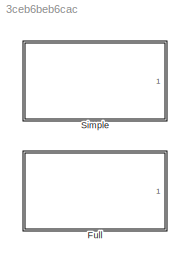
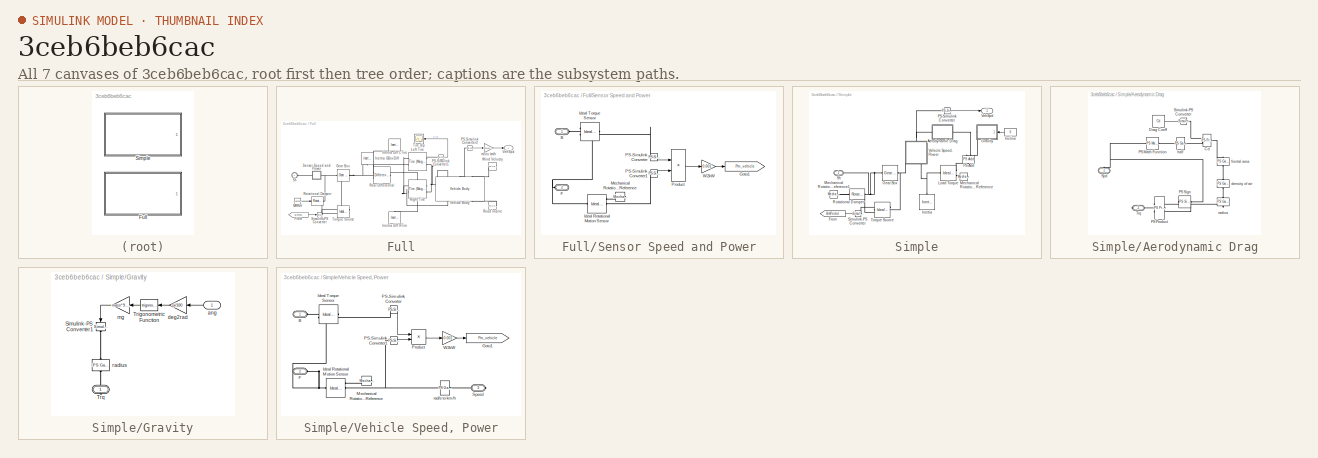
[diagram: thumbnail index - all 7 canvases of the model, root first then tree order]
MODEL slx_3ceb6beb6cac
KIND library
CONFIG AbsTol = auto
CONFIG EnableMultiTasking = on
CONFIG FixedStep = auto
CONFIG MaxStep = auto
CONFIG MinStep = auto
CONFIG RelTol = 1e-3
CONFIG SampleTimeConstraint = Unconstrained
CONFIG Solver = ode45
CONFIG SolverName = ode45
CONFIG StartTime = 0.0
CONFIG StopTime = 10.0
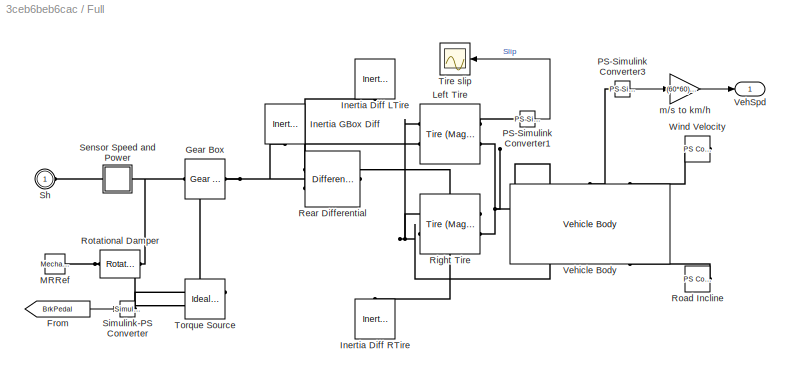
BLOCK [SubSystem] Full
  Ports = [0, 1, 0, 0, 0, 1]
  RequestExecContextInheritance = off
BLOCK [From] Full/From
  GotoTag = BrkPedal
BLOCK [Reference] Full/Gear Box  REF=fl_lib/Mechanical/Mechanisms/Gear Box
  Ports = [0, 0, 0, 0, 0, 1, 1]
  SourceBlock = fl_lib/Mechanical/Mechanisms/Gear Box
  SourceProductBaseCode = SS
  SourceType = Gear Box
BLOCK [Reference] Full/Inertia Diff LTire  REF=fl_lib/Mechanical/Rotational Elements/Inertia
  NameLocation = left
  Ports = [0, 0, 0, 0, 0, 1]
  SourceBlock = fl_lib/Mechanical/Rotational Elements/Inertia
  SourceProductBaseCode = SS
  SourceType = Inertia
BLOCK [Reference] Full/Inertia Diff RTire  REF=fl_lib/Mechanical/Rotational Elements/Inertia
  NameLocation = left
  Ports = [0, 0, 0, 0, 0, 1]
  SourceBlock = fl_lib/Mechanical/Rotational Elements/Inertia
  SourceProductBaseCode = SS
  SourceType = Inertia
BLOCK [Reference] Full/Inertia GBox Diff  REF=fl_lib/Mechanical/Rotational Elements/Inertia
  NameLocation = left
  Ports = [0, 0, 0, 0, 0, 1]
  SourceBlock = fl_lib/Mechanical/Rotational Elements/Inertia
  SourceProductBaseCode = SS
  SourceType = Inertia
BLOCK [Reference] Full/Left Tire  REF=sdl_lib/Tires & Vehicles/Tire (Magic Formula)
  Ports = [0, 0, 0, 0, 0, 2, 2]
  SourceBlock = sdl_lib/Tires & Vehicles/Tire (Magic Formula)
  SourceProductBaseCode = LD
  SourceType = Tire (Magic Formula)
BLOCK [Reference] Full/MRRef  REF=fl_lib/Mechanical/Rotational Elements/Mechanical
Rotational Reference
  NameLocation = top
  Ports = [0, 0, 0, 0, 0, 1]
  SourceBlock = fl_lib/Mechanical/Rotational Elements/Mechanical\nRotational Reference
  SourceProductBaseCode = SS
  SourceType = Mechanical\nRotational Reference
BLOCK [Reference] Full/PS-Simulink Converter1  REF=nesl_utility/PS-Simulink
Converter
  Ports = [0, 1, 0, 0, 0, 1]
  SourceBlock = nesl_utility/PS-Simulink\nConverter
  SourceProductBaseCode = SS
  SourceType = PS-Simulink\nConverter
BLOCK [Reference] Full/PS-Simulink Converter3  REF=nesl_utility/PS-Simulink
Converter
  Ports = [0, 1, 0, 0, 0, 1]
  SourceBlock = nesl_utility/PS-Simulink\nConverter
  SourceProductBaseCode = SS
  SourceType = PS-Simulink\nConverter
BLOCK [Reference] Full/Rear Differential  REF=sdl_lib/Gears/Differential
  Ports = [0, 0, 0, 0, 0, 1, 2]
  SourceBlock = sdl_lib/Gears/Differential
  SourceProductBaseCode = LD
  SourceType = Differential
BLOCK [Reference] Full/Right Tire  REF=sdl_lib/Tires & Vehicles/Tire (Magic Formula)
  Ports = [0, 0, 0, 0, 0, 2, 2]
  SourceBlock = sdl_lib/Tires & Vehicles/Tire (Magic Formula)
  SourceProductBaseCode = LD
  SourceType = Tire (Magic Formula)
BLOCK [Reference] Full/Road Incline  REF=fl_lib/Physical Signals/Sources/PS Constant
  Ports = [0, 0, 0, 0, 0, 0, 1]
  SourceBlock = fl_lib/Physical Signals/Sources/PS Constant
  SourceProductBaseCode = SS
  SourceType = PS Constant
BLOCK [Reference] Full/Rotational Damper  REF=fl_lib/Mechanical/Rotational Elements/Rotational Damper
  Ports = [0, 0, 0, 0, 0, 1, 1]
  SourceBlock = fl_lib/Mechanical/Rotational Elements/Rotational Damper
  SourceProductBaseCode = SS
  SourceType = Rotational Damper
BLOCK [SubSystem] Full/Sensor Speed and Power
  Ports = [0, 0, 0, 0, 0, 1, 1]
  RequestExecContextInheritance = off
BLOCK [PMIOPort] Full/Sensor Speed and Power/B
  NameLocation = top
  Side = Left
BLOCK [PMIOPort] Full/Sensor Speed and Power/F
  NameLocation = top
  Port = 2
  Side = Right
BLOCK [Goto] Full/Sensor Speed and Power/Goto1
  GotoTag = Pm_vehicle
  TagVisibility = global
BLOCK [Reference] Full/Sensor Speed and Power/Ideal Rotational Motion Sensor  REF=fl_lib/Mechanical/Mechanical Sensors/Ideal Rotational
Motion Sensor
  Ports = [0, 0, 0, 0, 0, 1, 3]
  SourceBlock = fl_lib/Mechanical/Mechanical Sensors/Ideal Rotational\nMotion Sensor
  SourceProductBaseCode = SS
  SourceType = Ideal Rotational\nMotion Sensor
BLOCK [Reference] Full/Sensor Speed and Power/Ideal Torque Sensor  REF=fl_lib/Mechanical/Mechanical Sensors/Ideal Torque Sensor
  Ports = [0, 0, 0, 0, 0, 1, 2]
  SourceBlock = fl_lib/Mechanical/Mechanical Sensors/Ideal Torque Sensor
  SourceProductBaseCode = SS
  SourceType = Ideal Torque Sensor
BLOCK [Reference] Full/Sensor Speed and Power/Mechanical Rotational Reference  REF=fl_lib/Mechanical/Rotational Elements/Mechanical
Rotational Reference
  NameLocation = top
  Ports = [0, 0, 0, 0, 0, 1]
  SourceBlock = fl_lib/Mechanical/Rotational Elements/Mechanical\nRotational Reference
  SourceProductBaseCode = SS
  SourceType = Mechanical\nRotational Reference
BLOCK [Reference] Full/Sensor Speed and Power/PS-Simulink Converter  REF=nesl_utility/PS-Simulink
Converter
  Ports = [0, 1, 0, 0, 0, 1]
  SourceBlock = nesl_utility/PS-Simulink\nConverter
  SourceProductBaseCode = SS
  SourceType = PS-Simulink\nConverter
BLOCK [Reference] Full/Sensor Speed and Power/PS-Simulink Converter1  REF=nesl_utility/PS-Simulink
Converter
  Ports = [0, 1, 0, 0, 0, 1]
  SourceBlock = nesl_utility/PS-Simulink\nConverter
  SourceProductBaseCode = SS
  SourceType = PS-Simulink\nConverter
BLOCK [Product] Full/Sensor Speed and Power/Product
  Ports = [2, 1]
  RndMeth = Zero
BLOCK [Gain] Full/Sensor Speed and Power/W2kW
  Gain = 0.001
BLOCK [PMIOPort] Full/Sh
  Side = Left
BLOCK [Reference] Full/Simulink-PS Converter  REF=nesl_utility/Simulink-PS
Converter
  Ports = [1, 0, 0, 0, 0, 0, 1]
  SourceBlock = nesl_utility/Simulink-PS\nConverter
  SourceProductBaseCode = SS
  SourceType = Simulink-PS\nConverter
BLOCK [Scope] Full/Tire slip
  Floating = off
  NumInputPorts = 1
  Ports = [1]
  ScopeSpecificationString = C++SS(StrPVP('Location','[675, 186, 999, 423]'),StrPVP('Open','off'),MxPVP('AxesTitles',54,'struct(''axes1'',''%<SignalLabel>'')'),StrPVP('YMin','0'),StrPVP('YMax','0.1'),StrPVP('DataFormat','StructureWithTime'),StrPVP('MaxDataPoints','500000'),StrPVP('BlockParamSampleTime','0.1'),StrPVP('LimitDataPoints','on'),StrPVP('DataLoggingDecimation','1'),StrPVP('BlockParamSampleInput','off'),StrPVP('DataL...<+192ch>
BLOCK [Reference] Full/Torque Source  REF=fl_lib/Mechanical/Mechanical Sources/Ideal Torque Source
  Ports = [0, 0, 0, 0, 0, 1, 2]
  SourceBlock = fl_lib/Mechanical/Mechanical Sources/Ideal Torque Source
  SourceProductBaseCode = SS
  SourceType = Ideal Torque Source
BLOCK [Outport] Full/VehSpd
  VectorParamsAs1DForOutWhenUnconnected = off
BLOCK [Reference] Full/Vehicle Body  REF=sdl_lib/Tires & Vehicles/Vehicle Body
  NameLocation = right
  Ports = [0, 0, 0, 0, 0, 3, 3]
  SourceBlock = sdl_lib/Tires & Vehicles/Vehicle Body
  SourceProductBaseCode = LD
  SourceType = Vehicle Body
BLOCK [Reference] Full/Wind Velocity  REF=fl_lib/Physical Signals/Sources/PS Constant
  Ports = [0, 0, 0, 0, 0, 0, 1]
  SourceBlock = fl_lib/Physical Signals/Sources/PS Constant
  SourceProductBaseCode = SS
  SourceType = PS Constant
BLOCK [Gain] Full/m//s to km//h
  Gain = (60*60)/1000
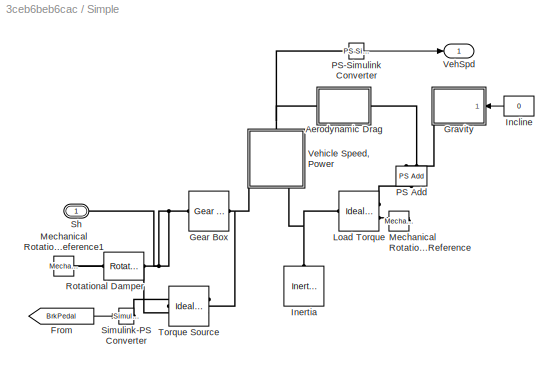
BLOCK [SubSystem] Simple
  Ports = [0, 1, 0, 0, 0, 1]
  RequestExecContextInheritance = off
BLOCK [SubSystem] Simple/Aerodynamic Drag
  Ports = [0, 0, 0, 0, 0, 1, 1]
  RequestExecContextInheritance = off
BLOCK [Reference] Simple/Aerodynamic Drag/Cd  REF=fl_lib/Physical Signals/Functions/PS Product
  Ports = [0, 0, 0, 0, 0, 2, 1]
  SourceBlock = fl_lib/Physical Signals/Functions/PS Product
  SourceProductBaseCode = SS
  SourceType = PS Product
BLOCK [Constant] Simple/Aerodynamic Drag/Drag Coeff
  Value = Cd
BLOCK [Reference] Simple/Aerodynamic Drag/PS Math Function  REF=fl_lib/Physical Signals/Functions/PS Math Function
  Ports = [0, 0, 0, 0, 0, 1, 1]
  SourceBlock = fl_lib/Physical Signals/Functions/PS Math Function
  SourceProductBaseCode = SS
  SourceType = PS Math Function
BLOCK [Reference] Simple/Aerodynamic Drag/PS Product  REF=fl_lib/Physical Signals/Functions/PS Product
  NameLocation = top
  Ports = [0, 0, 0, 0, 0, 2, 1]
  SourceBlock = fl_lib/Physical Signals/Functions/PS Product
  SourceProductBaseCode = SS
  SourceType = PS Product
BLOCK [Reference] Simple/Aerodynamic Drag/PS Sign  REF=fl_lib/Physical Signals/Nonlinear Operators/PS Sign
  NameLocation = top
  Ports = [0, 0, 0, 0, 0, 1, 1]
  SourceBlock = fl_lib/Physical Signals/Nonlinear Operators/PS Sign
  SourceProductBaseCode = SS
  SourceType = PS Sign
BLOCK [Reference] Simple/Aerodynamic Drag/Simulink-PS Converter  REF=nesl_utility/Simulink-PS
Converter
  Ports = [1, 0, 0, 0, 0, 0, 1]
  SourceBlock = nesl_utility/Simulink-PS\nConverter
  SourceProductBaseCode = SS
  SourceType = Simulink-PS\nConverter
BLOCK [PMIOPort] Simple/Aerodynamic Drag/Spd
  NameLocation = right
  Side = Left
BLOCK [PMIOPort] Simple/Aerodynamic Drag/Trq
  Port = 2
  Side = Right
BLOCK [Reference] Simple/Aerodynamic Drag/density of air  REF=fl_lib/Physical Signals/Functions/PS Gain
  NameLocation = right
  Ports = [0, 0, 0, 0, 0, 1, 1]
  SourceBlock = fl_lib/Physical Signals/Functions/PS Gain
  SourceProductBaseCode = SS
  SourceType = PS Gain
BLOCK [Reference] Simple/Aerodynamic Drag/frontal area  REF=fl_lib/Physical Signals/Functions/PS Gain
  NameLocation = right
  Ports = [0, 0, 0, 0, 0, 1, 1]
  SourceBlock = fl_lib/Physical Signals/Functions/PS Gain
  SourceProductBaseCode = SS
  SourceType = PS Gain
BLOCK [Reference] Simple/Aerodynamic Drag/half  REF=fl_lib/Physical Signals/Functions/PS Gain
  Ports = [0, 0, 0, 0, 0, 1, 1]
  SourceBlock = fl_lib/Physical Signals/Functions/PS Gain
  SourceProductBaseCode = SS
  SourceType = PS Gain
BLOCK [Reference] Simple/Aerodynamic Drag/radius  REF=fl_lib/Physical Signals/Functions/PS Gain
  NameLocation = left
  Ports = [0, 0, 0, 0, 0, 1, 1]
  SourceBlock = fl_lib/Physical Signals/Functions/PS Gain
  SourceProductBaseCode = SS
  SourceType = PS Gain
BLOCK [From] Simple/From
  GotoTag = BrkPedal
BLOCK [Reference] Simple/Gear Box  REF=fl_lib/Mechanical/Mechanisms/Gear Box
  Ports = [0, 0, 0, 0, 0, 1, 1]
  SourceBlock = fl_lib/Mechanical/Mechanisms/Gear Box
  SourceProductBaseCode = SS
  SourceType = Gear Box
BLOCK [SubSystem] Simple/Gravity
  Ports = [1, 0, 0, 0, 0, 0, 1]
  RequestExecContextInheritance = off
BLOCK [Reference] Simple/Gravity/Simulink-PS Converter1  REF=nesl_utility/Simulink-PS
Converter
  NameLocation = right
  Ports = [1, 0, 0, 0, 0, 0, 1]
  SourceBlock = nesl_utility/Simulink-PS\nConverter
  SourceProductBaseCode = SS
  SourceType = Simulink-PS\nConverter
BLOCK [Trigonometry] Simple/Gravity/Trigonometric Function
  Ports = [1, 1]
BLOCK [PMIOPort] Simple/Gravity/Trq
  NameLocation = right
  Side = Right
BLOCK [Inport] Simple/Gravity/ang
BLOCK [Gain] Simple/Gravity/deg2rad
  Gain = pi/180
BLOCK [Gain] Simple/Gravity/mg
  Gain = mass*9.81
BLOCK [Reference] Simple/Gravity/radius  REF=fl_lib/Physical Signals/Functions/PS Gain
  NameLocation = right
  Ports = [0, 0, 0, 0, 0, 1, 1]
  SourceBlock = fl_lib/Physical Signals/Functions/PS Gain
  SourceProductBaseCode = SS
  SourceType = PS Gain
BLOCK [Constant] Simple/Incline
  Value = 0
BLOCK [Reference] Simple/Inertia  REF=fl_lib/Mechanical/Rotational Elements/Inertia
  NameLocation = right
  Ports = [0, 0, 0, 0, 0, 1]
  SourceBlock = fl_lib/Mechanical/Rotational Elements/Inertia
  SourceProductBaseCode = SS
  SourceType = Inertia
BLOCK [Reference] Simple/Load Torque  REF=fl_lib/Mechanical/Mechanical Sources/Ideal Torque Source
  Ports = [0, 0, 0, 0, 0, 1, 2]
  SourceBlock = fl_lib/Mechanical/Mechanical Sources/Ideal Torque Source
  SourceProductBaseCode = SS
  SourceType = Ideal Torque Source
BLOCK [Reference] Simple/Mechanical Rotational Reference  REF=fl_lib/Mechanical/Rotational Elements/Mechanical
Rotational Reference
  NameLocation = top
  Ports = [0, 0, 0, 0, 0, 1]
  SourceBlock = fl_lib/Mechanical/Rotational Elements/Mechanical\nRotational Reference
  SourceProductBaseCode = SS
  SourceType = Mechanical\nRotational Reference
BLOCK [Reference] Simple/Mechanical Rotational Reference1  REF=fl_lib/Mechanical/Rotational Elements/Mechanical
Rotational Reference
  NameLocation = top
  Ports = [0, 0, 0, 0, 0, 1]
  SourceBlock = fl_lib/Mechanical/Rotational Elements/Mechanical\nRotational Reference
  SourceProductBaseCode = SS
  SourceType = Mechanical\nRotational Reference
BLOCK [Reference] Simple/PS Add  REF=fl_lib/Physical Signals/Functions/PS Add
  NameLocation = right
  Ports = [0, 0, 0, 0, 0, 2, 1]
  SourceBlock = fl_lib/Physical Signals/Functions/PS Add
  SourceProductBaseCode = SS
  SourceType = PS Add
BLOCK [Reference] Simple/PS-Simulink Converter  REF=nesl_utility/PS-Simulink
Converter
  Ports = [0, 1, 0, 0, 0, 1]
  SourceBlock = nesl_utility/PS-Simulink\nConverter
  SourceProductBaseCode = SS
  SourceType = PS-Simulink\nConverter
BLOCK [Reference] Simple/Rotational Damper  REF=fl_lib/Mechanical/Rotational Elements/Rotational Damper
  Ports = [0, 0, 0, 0, 0, 1, 1]
  SourceBlock = fl_lib/Mechanical/Rotational Elements/Rotational Damper
  SourceProductBaseCode = SS
  SourceType = Rotational Damper
BLOCK [PMIOPort] Simple/Sh
  Side = Left
BLOCK [Reference] Simple/Simulink-PS Converter  REF=nesl_utility/Simulink-PS
Converter
  Ports = [1, 0, 0, 0, 0, 0, 1]
  SourceBlock = nesl_utility/Simulink-PS\nConverter
  SourceProductBaseCode = SS
  SourceType = Simulink-PS\nConverter
BLOCK [Reference] Simple/Torque Source  REF=fl_lib/Mechanical/Mechanical Sources/Ideal Torque Source
  Ports = [0, 0, 0, 0, 0, 1, 2]
  SourceBlock = fl_lib/Mechanical/Mechanical Sources/Ideal Torque Source
  SourceProductBaseCode = SS
  SourceType = Ideal Torque Source
BLOCK [Outport] Simple/VehSpd
  VectorParamsAs1DForOutWhenUnconnected = off
BLOCK [SubSystem] Simple/Vehicle Speed, Power
  NameLocation = left
  Ports = [0, 0, 0, 0, 0, 2, 1]
  RequestExecContextInheritance = off
BLOCK [PMIOPort] Simple/Vehicle Speed, Power/B
  NameLocation = top
  Side = Left
BLOCK [PMIOPort] Simple/Vehicle Speed, Power/F
  NameLocation = top
  Port = 2
  Side = Left
BLOCK [Goto] Simple/Vehicle Speed, Power/Goto1
  GotoTag = Pm_vehicle
  TagVisibility = global
BLOCK [Reference] Simple/Vehicle Speed, Power/Ideal Rotational Motion Sensor  REF=fl_lib/Mechanical/Mechanical Sensors/Ideal Rotational
Motion Sensor
  Ports = [0, 0, 0, 0, 0, 1, 3]
  SourceBlock = fl_lib/Mechanical/Mechanical Sensors/Ideal Rotational\nMotion Sensor
  SourceProductBaseCode = SS
  SourceType = Ideal Rotational\nMotion Sensor
BLOCK [Reference] Simple/Vehicle Speed, Power/Ideal Torque Sensor  REF=fl_lib/Mechanical/Mechanical Sensors/Ideal Torque Sensor
  Ports = [0, 0, 0, 0, 0, 1, 2]
  SourceBlock = fl_lib/Mechanical/Mechanical Sensors/Ideal Torque Sensor
  SourceProductBaseCode = SS
  SourceType = Ideal Torque Sensor
BLOCK [Reference] Simple/Vehicle Speed, Power/Mechanical Rotational Reference  REF=fl_lib/Mechanical/Rotational Elements/Mechanical
Rotational Reference
  NameLocation = top
  Ports = [0, 0, 0, 0, 0, 1]
  SourceBlock = fl_lib/Mechanical/Rotational Elements/Mechanical\nRotational Reference
  SourceProductBaseCode = SS
  SourceType = Mechanical\nRotational Reference
BLOCK [Reference] Simple/Vehicle Speed, Power/PS-Simulink Converter  REF=nesl_utility/PS-Simulink
Converter
  Ports = [0, 1, 0, 0, 0, 1]
  SourceBlock = nesl_utility/PS-Simulink\nConverter
  SourceProductBaseCode = SS
  SourceType = PS-Simulink\nConverter
BLOCK [Reference] Simple/Vehicle Speed, Power/PS-Simulink Converter1  REF=nesl_utility/PS-Simulink
Converter
  Ports = [0, 1, 0, 0, 0, 1]
  SourceBlock = nesl_utility/PS-Simulink\nConverter
  SourceProductBaseCode = SS
  SourceType = PS-Simulink\nConverter
BLOCK [Product] Simple/Vehicle Speed, Power/Product
  Ports = [2, 1]
  RndMeth = Zero
BLOCK [PMIOPort] Simple/Vehicle Speed, Power/Speed
  Port = 3
  Side = Right
BLOCK [Gain] Simple/Vehicle Speed, Power/W2kW
  Gain = 0.001
BLOCK [Reference] Simple/Vehicle Speed, Power/rad//s to km//h  REF=fl_lib/Physical Signals/Functions/PS Gain
  Ports = [0, 0, 0, 0, 0, 1, 1]
  SourceBlock = fl_lib/Physical Signals/Functions/PS Gain
  SourceProductBaseCode = SS
  SourceType = PS Gain
LINE Full/From:1 -> Full/Simulink-PS Converter:1
LINE Full/PS-Simulink Converter1:1 -> Full/Tire slip:1
LINE Full/PS-Simulink Converter3:1 -> Full/m//s to km//h:1
LINE Full/Sensor Speed and Power/PS-Simulink Converter1:1 -> Full/Sensor Speed and Power/Product:2
LINE Full/Sensor Speed and Power/PS-Simulink Converter:1 -> Full/Sensor Speed and Power/Product:1
LINE Full/Sensor Speed and Power/Product:1 -> Full/Sensor Speed and Power/W2kW:1
LINE Full/Sensor Speed and Power/W2kW:1 -> Full/Sensor Speed and Power/Goto1:1
LINE Full/m//s to km//h:1 -> Full/VehSpd:1
LINE Simple/Aerodynamic Drag/Drag Coeff:1 -> Simple/Aerodynamic Drag/Simulink-PS Converter:1
LINE Simple/From:1 -> Simple/Simulink-PS Converter:1
LINE Simple/Gravity/Trigonometric Function:1 -> Simple/Gravity/mg:1
LINE Simple/Gravity/ang:1 -> Simple/Gravity/deg2rad:1
LINE Simple/Gravity/deg2rad:1 -> Simple/Gravity/Trigonometric Function:1
LINE Simple/Gravity/mg:1 -> Simple/Gravity/Simulink-PS Converter1:1
LINE Simple/Incline:1 -> Simple/Gravity:1
LINE Simple/PS-Simulink Converter:1 -> Simple/VehSpd:1
LINE Simple/Vehicle Speed, Power/PS-Simulink Converter1:1 -> Simple/Vehicle Speed, Power/Product:2
LINE Simple/Vehicle Speed, Power/PS-Simulink Converter:1 -> Simple/Vehicle Speed, Power/Product:1
LINE Simple/Vehicle Speed, Power/Product:1 -> Simple/Vehicle Speed, Power/W2kW:1
LINE Simple/Vehicle Speed, Power/W2kW:1 -> Simple/Vehicle Speed, Power/Goto1:1
PNET net1: Full/Gear Box:LConn1 -- Full/Rotational Damper:LConn1 -- Full/Sensor Speed and Power:RConn1
PNET net2: Full/Gear Box:RConn1 -- Full/Inertia GBox Diff:LConn1 -- Full/Rear Differential:LConn1 -- Full/Torque Source:LConn1
PNET net3: Full/Inertia Diff LTire:LConn1 -- Full/Left Tire:LConn2 -- Full/Rear Differential:RConn2
PNET net4: Full/Inertia Diff RTire:LConn1 -- Full/Rear Differential:RConn1 -- Full/Right Tire:LConn2
PNET net5: Full/Left Tire:LConn1 -- Full/Right Tire:LConn1 -- Full/Vehicle Body:RConn1
PLINE Full/Left Tire:RConn1 -- Full/PS-Simulink Converter1:LConn1
PNET net6: Full/Left Tire:RConn2 -- Full/Right Tire:RConn2 -- Full/Vehicle Body:LConn1
PNET net7: Full/MRRef:LConn1 -- Full/Rotational Damper:RConn1 -- Full/Torque Source:RConn2
PLINE Full/PS-Simulink Converter3:LConn1 -- Full/Vehicle Body:LConn2
PLINE Full/Road Incline:RConn1 -- Full/Vehicle Body:RConn3
PLINE Full/Sensor Speed and Power/B:RConn1 -- Full/Sensor Speed and Power/Ideal Torque Sensor:LConn1
PNET net8: Full/Sensor Speed and Power/F:RConn1 -- Full/Sensor Speed and Power/Ideal Rotational Motion Sensor:LConn1 -- Full/Sensor Speed and Power/Ideal Torque Sensor:RConn1
PLINE Full/Sensor Speed and Power/Ideal Rotational Motion Sensor:RConn1 -- Full/Sensor Speed and Power/Mechanical Rotational Reference:LConn1
PLINE Full/Sensor Speed and Power/Ideal Rotational Motion Sensor:RConn2 -- Full/Sensor Speed and Power/PS-Simulink Converter1:LConn1
PLINE Full/Sensor Speed and Power/Ideal Torque Sensor:RConn2 -- Full/Sensor Speed and Power/PS-Simulink Converter:LConn1
PLINE Full/Sensor Speed and Power:LConn1 -- Full/Sh:RConn1
PLINE Full/Simulink-PS Converter:RConn1 -- Full/Torque Source:RConn1
PLINE Full/Vehicle Body:LConn3 -- Full/Wind Velocity:RConn1
PLINE Simple/Aerodynamic Drag/Cd:LConn1 -- Simple/Aerodynamic Drag/Simulink-PS Converter:RConn1
PLINE Simple/Aerodynamic Drag/Cd:LConn2 -- Simple/Aerodynamic Drag/half:RConn1
PLINE Simple/Aerodynamic Drag/Cd:RConn1 -- Simple/Aerodynamic Drag/frontal area:LConn1
PNET net9: Simple/Aerodynamic Drag/PS Math Function:LConn1 -- Simple/Aerodynamic Drag/PS Sign:LConn1 -- Simple/Aerodynamic Drag/Spd:RConn1
PLINE Simple/Aerodynamic Drag/PS Math Function:RConn1 -- Simple/Aerodynamic Drag/half:LConn1
PLINE Simple/Aerodynamic Drag/PS Product:LConn1 -- Simple/Aerodynamic Drag/radius:RConn1
PLINE Simple/Aerodynamic Drag/PS Product:LConn2 -- Simple/Aerodynamic Drag/PS Sign:RConn1
PLINE Simple/Aerodynamic Drag/PS Product:RConn1 -- Simple/Aerodynamic Drag/Trq:RConn1
PLINE Simple/Aerodynamic Drag/density of air:LConn1 -- Simple/Aerodynamic Drag/frontal area:RConn1
PLINE Simple/Aerodynamic Drag/density of air:RConn1 -- Simple/Aerodynamic Drag/radius:LConn1
PNET net10: Simple/Aerodynamic Drag:LConn1 -- Simple/PS-Simulink Converter:LConn1 -- Simple/Vehicle Speed, Power:RConn1
PLINE Simple/Aerodynamic Drag:RConn1 -- Simple/PS Add:LConn2
PNET net11: Simple/Gear Box:LConn1 -- Simple/Rotational Damper:LConn1 -- Simple/Sh:RConn1
PNET net12: Simple/Gear Box:RConn1 -- Simple/Torque Source:LConn1 -- Simple/Vehicle Speed, Power:LConn1
PLINE Simple/Gravity/Simulink-PS Converter1:RConn1 -- Simple/Gravity/radius:LConn1
PLINE Simple/Gravity/Trq:RConn1 -- Simple/Gravity/radius:RConn1
PLINE Simple/Gravity:RConn1 -- Simple/PS Add:LConn1
PNET net13: Simple/Inertia:LConn1 -- Simple/Load Torque:LConn1 -- Simple/Vehicle Speed, Power:LConn2
PLINE Simple/Load Torque:RConn1 -- Simple/PS Add:RConn1
PLINE Simple/Load Torque:RConn2 -- Simple/Mechanical Rotational Reference:LConn1
PNET net14: Simple/Mechanical Rotational Reference1:LConn1 -- Simple/Rotational Damper:RConn1 -- Simple/Torque Source:RConn2
PLINE Simple/Simulink-PS Converter:RConn1 -- Simple/Torque Source:RConn1
PLINE Simple/Vehicle Speed, Power/B:RConn1 -- Simple/Vehicle Speed, Power/Ideal Torque Sensor:LConn1
PNET net15: Simple/Vehicle Speed, Power/F:RConn1 -- Simple/Vehicle Speed, Power/Ideal Rotational Motion Sensor:LConn1 -- Simple/Vehicle Speed, Power/Ideal Torque Sensor:RConn1
PLINE Simple/Vehicle Speed, Power/Ideal Rotational Motion Sensor:RConn1 -- Simple/Vehicle Speed, Power/Mechanical Rotational Reference:LConn1
PNET net16: Simple/Vehicle Speed, Power/Ideal Rotational Motion Sensor:RConn2 -- Simple/Vehicle Speed, Power/PS-Simulink Converter1:LConn1 -- Simple/Vehicle Speed, Power/rad//s to km//h:LConn1
PLINE Simple/Vehicle Speed, Power/Ideal Torque Sensor:RConn2 -- Simple/Vehicle Speed, Power/PS-Simulink Converter:LConn1
PLINE Simple/Vehicle Speed, Power/Speed:RConn1 -- Simple/Vehicle Speed, Power/rad//s to km//h:RConn1
note: PNET lines group multi-terminal physical nets as a canonical sorted terminal list (undirected conserving connections); 2-terminal nets keep the pairwise PLINE form
